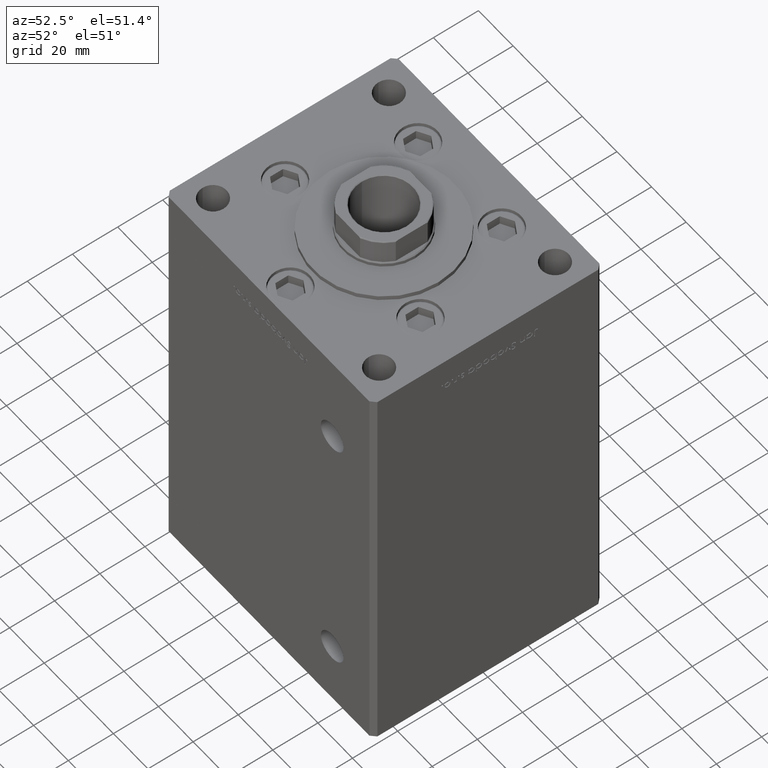
[diagram: clean part render]
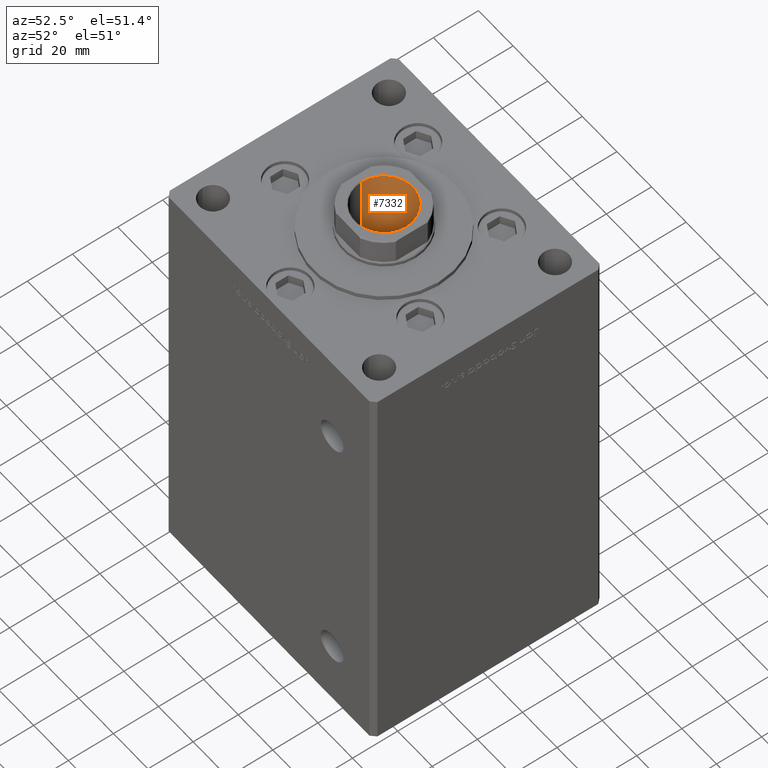
[diagram: same view with one face highlighted and labeled with its STEP entity id]
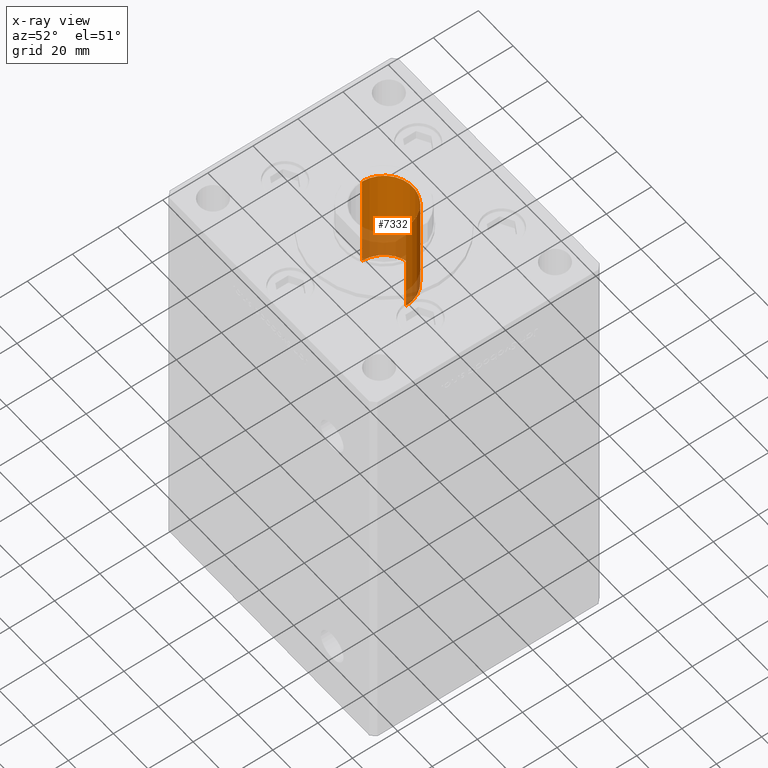
[diagram: x-ray of the same camera — body ghosted, the highlighted face saturated]
A machine part, auxiliary view. The second image highlights one B-rep face of the part: STEP entity #7332.
The next image is the same camera in x-ray: the body ghosted, the highlighted face saturated — about 27% of this face is hidden behind the body in this view.
In plain terms, the highlighted cylindrical surface (edge-blend (fillet) strip) has radius 12.75 mm, axis along (0, 0, 1).
Its self-contained STEP definition (entity closure, byte-faithful):
#2871 = VERTEX_POINT ( 'NONE', #41092 ) ;
#3145 = DIRECTION ( 'NONE',  ( -0.000000000000000000, -0.000000000000000000, 1.000000000000000000 ) ) ;
#3652 = EDGE_CURVE ( 'NONE', #24580, #30195, #43902, .T. ) ;
#7332 = ADVANCED_FACE ( 'NONE', ( #51377 ), #19230, .F. ) ;
#7561 = DIRECTION ( 'NONE',  ( -0.000000000000000000, -0.000000000000000000, 1.000000000000000000 ) ) ;
#9441 = DIRECTION ( 'NONE',  ( -0.000000000000000000, -0.000000000000000000, 1.000000000000000000 ) ) ;
#9471 = CARTESIAN_POINT ( 'NONE',  ( -12.74999999999999467, 1.561424668912874519E-15, 168.9499999999999602 ) ) ;
#10460 = CARTESIAN_POINT ( 'NONE',  ( 12.74999999999999467, 0.000000000000000000, 169.2500000000000000 ) ) ;
#14515 = DIRECTION ( 'NONE',  ( 1.000000000000000000, 0.000000000000000000, 0.000000000000000000 ) ) ;
#14866 = EDGE_CURVE ( 'NONE', #2871, #24580, #30495, .T. ) ;
#16149 = AXIS2_PLACEMENT_3D ( 'NONE', #22671, #50607, #14515 ) ;
#16353 = VECTOR ( 'NONE', #9441, 1000.000000000000000 ) ;
#16481 = EDGE_CURVE ( 'NONE', #33088, #30195, #50266, .T. ) ;
#19230 = CYLINDRICAL_SURFACE ( 'NONE', #42302, 12.74999999999999467 ) ;
#22016 = AXIS2_PLACEMENT_3D ( 'NONE', #43675, #7561, #39734 ) ;
#22413 = ORIENTED_EDGE ( 'NONE', *, *, #14866, .T. ) ;
#22671 = CARTESIAN_POINT ( 'NONE',  ( 0.000000000000000000, 0.000000000000000000, 168.9499999999999602 ) ) ;
#23440 = ORIENTED_EDGE ( 'NONE', *, *, #46424, .F. ) ;
#24580 = VERTEX_POINT ( 'NONE', #25767 ) ;
#25767 = CARTESIAN_POINT ( 'NONE',  ( 12.74999999999999467, 0.000000000000000000, 168.9499999999999602 ) ) ;
#26506 = ORIENTED_EDGE ( 'NONE', *, *, #16481, .F. ) ;
#26521 = DIRECTION ( 'NONE',  ( -0.000000000000000000, -0.000000000000000000, 1.000000000000000000 ) ) ;
#26620 = DIRECTION ( 'NONE',  ( 1.000000000000000000, 0.000000000000000000, 0.000000000000000000 ) ) ;
#29471 = CARTESIAN_POINT ( 'NONE',  ( -12.74999999999999467, 1.561424668912874519E-15, 169.2500000000000000 ) ) ;
#30195 = VERTEX_POINT ( 'NONE', #9471 ) ;
#30495 = LINE ( 'NONE', #10460, #31434 ) ;
#31434 = VECTOR ( 'NONE', #26521, 1000.000000000000000 ) ;
#31876 = CARTESIAN_POINT ( 'NONE',  ( 0.000000000000000000, 0.000000000000000000, 169.2500000000000000 ) ) ;
#33088 = VERTEX_POINT ( 'NONE', #46807 ) ;
#38860 = ORIENTED_EDGE ( 'NONE', *, *, #3652, .T. ) ;
#39734 = DIRECTION ( 'NONE',  ( 1.000000000000000000, 0.000000000000000000, 0.000000000000000000 ) ) ;
#41092 = CARTESIAN_POINT ( 'NONE',  ( 12.74999999999999112, 0.000000000000000000, 124.2500000000000142 ) ) ;
#41501 = EDGE_LOOP ( 'NONE', ( #26506, #23440, #22413, #38860 ) ) ;
#42302 = AXIS2_PLACEMENT_3D ( 'NONE', #31876, #3145, #26620 ) ;
#43675 = CARTESIAN_POINT ( 'NONE',  ( 0.000000000000000000, 0.000000000000000000, 124.2500000000000142 ) ) ;
#43902 = CIRCLE ( 'NONE', #16149, 12.74999999999999467 ) ;
#46424 = EDGE_CURVE ( 'NONE', #2871, #33088, #48086, .T. ) ;
#46807 = CARTESIAN_POINT ( 'NONE',  ( -12.74999999999999112, 1.561424668912874125E-15, 124.2500000000000142 ) ) ;
#48086 = CIRCLE ( 'NONE', #22016, 12.74999999999999112 ) ;
#50266 = LINE ( 'NONE', #29471, #16353 ) ;
#50607 = DIRECTION ( 'NONE',  ( 0.000000000000000000, 0.000000000000000000, 1.000000000000000000 ) ) ;
#51377 = FACE_OUTER_BOUND ( 'NONE', #41501, .T. ) ;